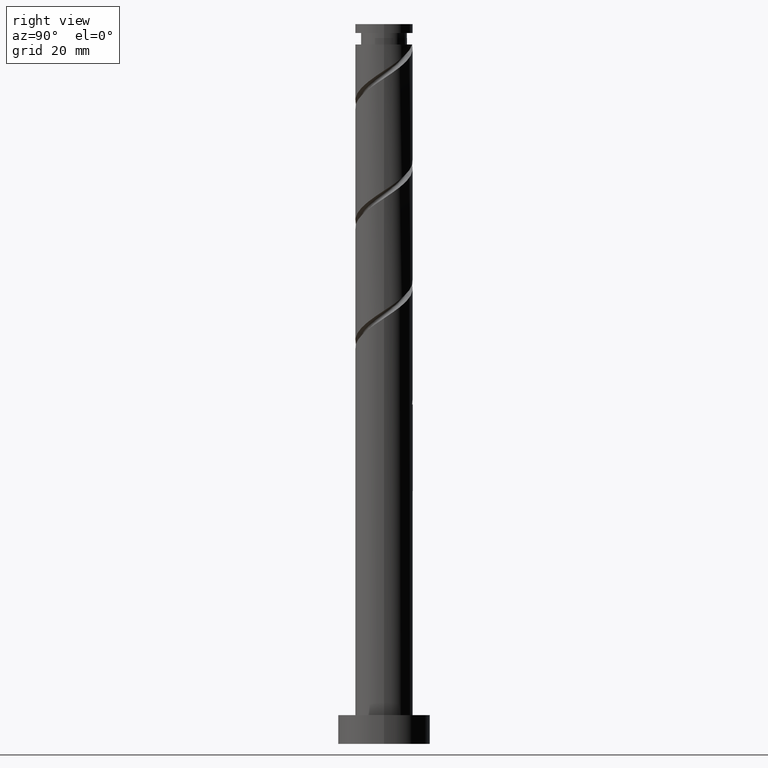
[diagram: clean part render]
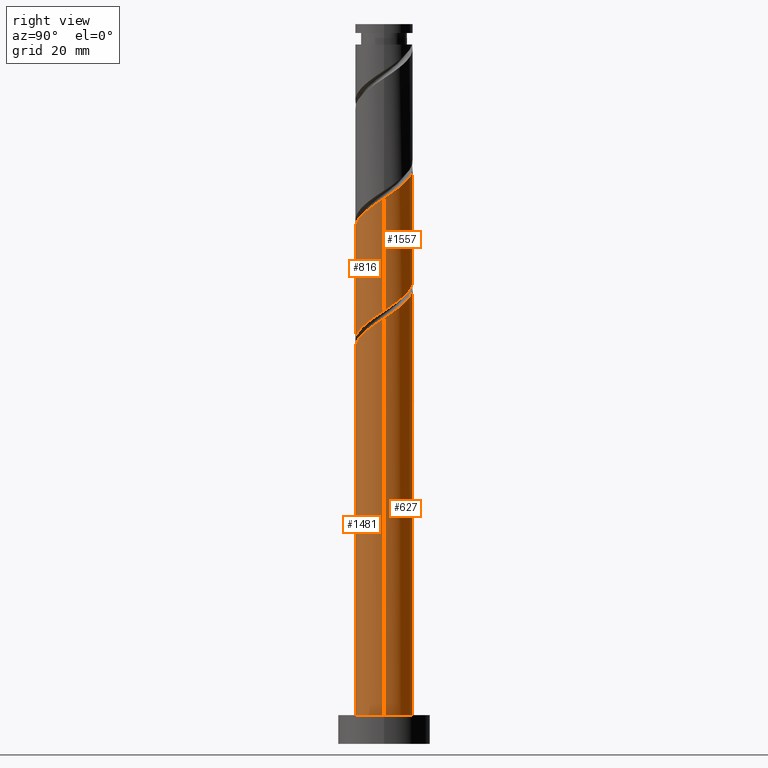
[diagram: same view with one multi-face feature highlighted, each face labeled with its STEP entity id]
A machine part, right view. The highlighted faces form ONE feature: a constant-radius fillet chain: 4 tangent blend faces with common blend radius 5 mm. The faces share edges in the B-rep.
Their STEP definitions:
[1] entity #1481 (Cylinder):
#39 = VECTOR ( 'NONE', #392, 1000.000000000000000 ) ;
#54 = CARTESIAN_POINT ( 'NONE',  ( 4.549022214184804014, -2.075185990424292193, 72.49653711299794168 ) ) ;
#60 = ORIENTED_EDGE ( 'NONE', *, *, #1266, .T. ) ;
#62 = CARTESIAN_POINT ( 'NONE',  ( -3.963008333537548999, -3.149873921561772150, 65.72570377966461308 ) ) ;
#71 = CARTESIAN_POINT ( 'NONE',  ( -4.900000000000005684, -0.9949874371066214085, 64.16320377966461308 ) ) ;
#140 = CARTESIAN_POINT ( 'NONE',  ( -5.000000000000000888, 0.000000000000000000, 125.0000000000000000 ) ) ;
#148 = CARTESIAN_POINT ( 'NONE',  ( 0.000000000000000000, 0.000000000000000000, 5.000000000000000000 ) ) ;
#169 = CARTESIAN_POINT ( 'NONE',  ( 0.9949874371066210754, -4.900000000000005684, 69.37153711299792747 ) ) ;
#190 = ORIENTED_EDGE ( 'NONE', *, *, #1456, .T. ) ;
#378 = VERTEX_POINT ( 'NONE', #921 ) ;
#392 = DIRECTION ( 'NONE',  ( -0.000000000000000000, -0.000000000000000000, -1.000000000000000000 ) ) ;
#433 = CARTESIAN_POINT ( 'NONE',  ( -4.742409471643930452, -1.771071194696850259, 64.68403711299794168 ) ) ;
#501 = VERTEX_POINT ( 'NONE', #1532 ) ;
#524 = CARTESIAN_POINT ( 'NONE',  ( 3.149873921561772150, -3.963008333537549444, 70.93403711299795589 ) ) ;
#561 = AXIS2_PLACEMENT_3D ( 'NONE', #148, #619, #1480 ) ;
#614 = LINE ( 'NONE', #140, #39 ) ;
#619 = DIRECTION ( 'NONE',  ( 0.000000000000000000, 0.000000000000000000, 1.000000000000000000 ) ) ;
#628 = FACE_OUTER_BOUND ( 'NONE', #690, .T. ) ;
#658 = CARTESIAN_POINT ( 'NONE',  ( -2.075185990424292193, -4.549022214184804014, 67.28820377966458466 ) ) ;
#666 = CARTESIAN_POINT ( 'NONE',  ( -5.000000000000005329, -5.397517001954073879E-15, 63.49840133819435550 ) ) ;
#676 = CARTESIAN_POINT ( 'NONE',  ( -0.5678939867451784362, -4.967644957101780001, 68.32987044633128448 ) ) ;
#690 = EDGE_LOOP ( 'NONE', ( #699, #1118, #60, #190 ) ) ;
#694 = VECTOR ( 'NONE', #829, 1000.000000000000000 ) ;
#699 = ORIENTED_EDGE ( 'NONE', *, *, #1190, .F. ) ;
#727 = DIRECTION ( 'NONE',  ( -1.000000000000000000, 0.000000000000000000, 0.000000000000000000 ) ) ;
#767 = CARTESIAN_POINT ( 'NONE',  ( -5.000000000000007994, -0.5025189076296117108, 63.83270591360220436 ) ) ;
#775 = CARTESIAN_POINT ( 'NONE',  ( -3.379344330689691756, -3.685109482041953211, 66.24653711299794168 ) ) ;
#829 = DIRECTION ( 'NONE',  ( -0.000000000000000000, -0.000000000000000000, -1.000000000000000000 ) ) ;
#860 =( BOUNDED_CURVE ( )  B_SPLINE_CURVE ( 2, ( #666, #767, #71, #433, #885, #62, #775, #1258, #658, #1392, #676, #1023, #169, #903, #1521, #524, #1128, #1251, #54, #914, #1376, #895, #1014 ),
 .UNSPECIFIED., .F., .T. ) 
 B_SPLINE_CURVE_WITH_KNOTS ( ( 3, 2, 2, 2, 2, 2, 2, 2, 2, 2, 2, 3 ),
 ( 0.05453220231385528388, 0.06250000000000000000, 0.07499999999999995559, 0.08750000000000002220, 0.09999999999999997780, 0.1125000000000000444, 0.1250000000000000000, 0.1374999999999999556, 0.1500000000000000222, 0.1624999999999999778, 0.1750000000000000444, 0.1795322023138551382 ),
 .UNSPECIFIED. ) 
 CURVE ( )  GEOMETRIC_REPRESENTATION_ITEM ( )  RATIONAL_B_SPLINE_CURVE ( ( 0.9039174447099377341, 0.9019565955404671431, 0.9090909090909153889, 0.8978984914501314529, 0.9090909090909153889, 0.8978984914501314529, 0.9090909090909153889, 0.8978984914501314529, 0.9090909090909153889, 0.8978984914501314529, 0.9090909090909153889, 0.8978984914501314529, 0.9090909090909153889, 0.8978984914501314529, 0.9090909090909153889, 0.8978984914501314529, 0.9090909090909153889, 0.8978984914501314529, 0.9090909090909153889, 0.8978984914501314529, 0.9090909090909153889, 0.9050328050005799208, 0.9039174447099376231 ) ) 
 REPRESENTATION_ITEM ( '' )  );
#866 = CARTESIAN_POINT ( 'NONE',  ( 0.000000000000000000, 0.000000000000000000, 125.0000000000000000 ) ) ;
#885 = CARTESIAN_POINT ( 'NONE',  ( -4.352708902590739726, -2.460472558129311427, 65.20487044633127027 ) ) ;
#895 = CARTESIAN_POINT ( 'NONE',  ( 5.000000000000007105, -0.2848686872321696817, 73.72555691565369784 ) ) ;
#903 = CARTESIAN_POINT ( 'NONE',  ( 1.771071194696850037, -4.742409471643930452, 69.89237044633128448 ) ) ;
#914 = CARTESIAN_POINT ( 'NONE',  ( 4.877699385847474645, -1.354691653006748986, 73.01737044633127027 ) ) ;
#921 = CARTESIAN_POINT ( 'NONE',  ( 5.000000000000000888, 6.123233995736767268E-16, 5.000000000000000000 ) ) ;
#951 = CARTESIAN_POINT ( 'NONE',  ( 5.000000000000000888, 6.123233995736767268E-16, 125.0000000000000000 ) ) ;
#998 = CIRCLE ( 'NONE', #561, 5.000000000000000888 ) ;
#1002 = EDGE_CURVE ( 'NONE', #501, #1098, #860, .T. ) ;
#1014 = CARTESIAN_POINT ( 'NONE',  ( 5.000000000000007105, 4.707834273926610220E-15, 73.91506800486101270 ) ) ;
#1023 = CARTESIAN_POINT ( 'NONE',  ( 0.2189036795163920024, -5.057590528356085358, 68.85070377966459887 ) ) ;
#1089 = VERTEX_POINT ( 'NONE', #1308 ) ;
#1098 = VERTEX_POINT ( 'NONE', #1194 ) ;
#1116 = AXIS2_PLACEMENT_3D ( 'NONE', #866, #1212, #727 ) ;
#1118 = ORIENTED_EDGE ( 'NONE', *, *, #1002, .F. ) ;
#1128 = CARTESIAN_POINT ( 'NONE',  ( 3.685109482041953211, -3.379344330689691756, 71.45487044633127027 ) ) ;
#1190 = EDGE_CURVE ( 'NONE', #1098, #378, #1553, .T. ) ;
#1194 = CARTESIAN_POINT ( 'NONE',  ( 5.000000000000007105, 4.707834273926609431E-15, 73.91506800486101270 ) ) ;
#1212 = DIRECTION ( 'NONE',  ( -0.000000000000000000, -0.000000000000000000, -1.000000000000000000 ) ) ;
#1251 = CARTESIAN_POINT ( 'NONE',  ( 4.220345042522133383, -2.795680327841834956, 71.97570377966461308 ) ) ;
#1258 = CARTESIAN_POINT ( 'NONE',  ( -2.795680327841834512, -4.220345042522133383, 66.76737044633128448 ) ) ;
#1266 = EDGE_CURVE ( 'NONE', #501, #1089, #614, .T. ) ;
#1308 = CARTESIAN_POINT ( 'NONE',  ( -5.000000000000000888, 0.000000000000000000, 5.000000000000000000 ) ) ;
#1376 = CARTESIAN_POINT ( 'NONE',  ( 4.967644957101780001, -0.5678939867451784362, 73.53820377966461308 ) ) ;
#1392 = CARTESIAN_POINT ( 'NONE',  ( -1.354691653006748320, -4.877699385847474645, 67.80903711299791325 ) ) ;
#1456 = EDGE_CURVE ( 'NONE', #1089, #378, #998, .T. ) ;
#1480 = DIRECTION ( 'NONE',  ( 1.000000000000000000, 0.000000000000000000, 0.000000000000000000 ) ) ;
#1481 = ADVANCED_FACE ( 'NONE', ( #628 ), #1490, .T. ) ;
#1490 = CYLINDRICAL_SURFACE ( 'NONE', #1116, 5.000000000000000888 ) ;
#1521 = CARTESIAN_POINT ( 'NONE',  ( 2.460472558129310983, -4.352708902590739726, 70.41320377966459887 ) ) ;
#1532 = CARTESIAN_POINT ( 'NONE',  ( -5.000000000000007105, -5.397517001954073879E-15, 63.49840133819435550 ) ) ;
#1553 = LINE ( 'NONE', #951, #694 ) ;
[2] entity #627 (Cylinder):
#4 = CARTESIAN_POINT ( 'NONE',  ( -4.549022214184804014, 2.075185990424291305, 62.07987044633127738 ) ) ;
#20 = CARTESIAN_POINT ( 'NONE',  ( 0.9949874371066222967, 4.900000000000000355, 58.95487044633127027 ) ) ;
#23 = ORIENTED_EDGE ( 'NONE', *, *, #1266, .F. ) ;
#39 = VECTOR ( 'NONE', #392, 1000.000000000000000 ) ;
#42 = CARTESIAN_POINT ( 'NONE',  ( 4.742409471643930452, 1.771071194696849815, 75.10070377966461308 ) ) ;
#51 = DIRECTION ( 'NONE',  ( -1.000000000000000000, 0.000000000000000000, 0.000000000000000000 ) ) ;
#63 = CARTESIAN_POINT ( 'NONE',  ( -0.5678939867451763268, 4.967644957101771119, 59.99653711299794878 ) ) ;
#85 = CARTESIAN_POINT ( 'NONE',  ( -2.795680327841830959, 4.220345042522129830, 61.55903711299793457 ) ) ;
#94 = CARTESIAN_POINT ( 'NONE',  ( -1.354691653006745433, 4.877699385847470204, 60.51737044633127027 ) ) ;
#102 = EDGE_CURVE ( 'NONE', #808, #501, #1044, .T. ) ;
#109 = CARTESIAN_POINT ( 'NONE',  ( -5.000000000000000888, 0.000000000000000000, 125.0000000000000000 ) ) ;
#130 = VERTEX_POINT ( 'NONE', #20 ) ;
#140 = CARTESIAN_POINT ( 'NONE',  ( -5.000000000000000888, 0.000000000000000000, 125.0000000000000000 ) ) ;
#175 = CARTESIAN_POINT ( 'NONE',  ( -4.549022214184804014, 2.075185990424291305, 82.91320377966458466 ) ) ;
#195 = CARTESIAN_POINT ( 'NONE',  ( -4.742409471643924235, 1.771071194696849149, 63.64237044633128448 ) ) ;
#220 = VERTEX_POINT ( 'NONE', #759 ) ;
#225 = CARTESIAN_POINT ( 'NONE',  ( 0.5678939867451792134, 4.967644957101780001, 78.74653711299794168 ) ) ;
#235 = ORIENTED_EDGE ( 'NONE', *, *, #1105, .F. ) ;
#239 = CARTESIAN_POINT ( 'NONE',  ( -4.967644957101780001, 0.5678939867451781032, 63.12153711299794168 ) ) ;
#243 = CIRCLE ( 'NONE', #1045, 5.000000000000000888 ) ;
#247 = CARTESIAN_POINT ( 'NONE',  ( 3.963008333537549444, 3.149873921561772150, 76.14237044633127027 ) ) ;
#252 = CARTESIAN_POINT ( 'NONE',  ( -5.000000000000005329, -5.397517001954073879E-15, 63.49840133819435550 ) ) ;
#272 = CARTESIAN_POINT ( 'NONE',  ( 5.000000000000007105, 0.5025189076296017188, 74.24937258026885445 ) ) ;
#301 = CARTESIAN_POINT ( 'NONE',  ( 0.9949874371066222967, 4.900000000000000355, 58.95487044633127027 ) ) ;
#320 = CARTESIAN_POINT ( 'NONE',  ( -3.379344330689686871, 3.685109482041948770, 62.07987044633126317 ) ) ;
#328 = CARTESIAN_POINT ( 'NONE',  ( -0.2189036795163912807, 5.057590528356085358, 79.26737044633129869 ) ) ;
#341 = CARTESIAN_POINT ( 'NONE',  ( 2.075185990424292637, 4.549022214184804014, 77.70487044633128448 ) ) ;
#358 = EDGE_CURVE ( 'NONE', #1429, #130, #823, .T. ) ;
#359 = CARTESIAN_POINT ( 'NONE',  ( 2.795680327841834956, 4.220345042522132495, 77.18403711299792747 ) ) ;
#378 = VERTEX_POINT ( 'NONE', #921 ) ;
#392 = DIRECTION ( 'NONE',  ( -0.000000000000000000, -0.000000000000000000, -1.000000000000000000 ) ) ;
#423 = CYLINDRICAL_SURFACE ( 'NONE', #1542, 5.000000000000000888 ) ;
#426 = CARTESIAN_POINT ( 'NONE',  ( -4.967644957101780001, 0.5678939867451781032, 83.95487044633128448 ) ) ;
#427 = CARTESIAN_POINT ( 'NONE',  ( -4.999999999999999112, 0.5025189076296100454, 64.49370164572702890 ) ) ;
#450 = FACE_OUTER_BOUND ( 'NONE', #1518, .T. ) ;
#473 = CIRCLE ( 'NONE', #1225, 5.000000000000000888 ) ;
#489 = CARTESIAN_POINT ( 'NONE',  ( -1.771071194696850259, 4.742409471643930452, 59.47570377966462019 ) ) ;
#501 = VERTEX_POINT ( 'NONE', #1532 ) ;
#517 = CARTESIAN_POINT ( 'NONE',  ( -2.460472558129311427, 4.352708902590739726, 80.82987044633128448 ) ) ;
#538 = CARTESIAN_POINT ( 'NONE',  ( -3.149873921561772150, 3.963008333537548999, 81.35070377966461308 ) ) ;
#564 = CARTESIAN_POINT ( 'NONE',  ( 5.000000000000007105, 4.707834273926610220E-15, 73.91506800486101270 ) ) ;
#592 = CARTESIAN_POINT ( 'NONE',  ( -4.220345042522134271, 2.795680327841834512, 61.55903711299794168 ) ) ;
#614 = LINE ( 'NONE', #140, #39 ) ;
#615 = CARTESIAN_POINT ( 'NONE',  ( 4.352708902590739726, 2.460472558129310539, 75.62153711299791325 ) ) ;
#627 = ADVANCED_FACE ( 'NONE', ( #450 ), #423, .T. ) ;
#638 = DIRECTION ( 'NONE',  ( -1.540743955509787281E-30, -1.040834085586083783E-14, -1.000000000000000000 ) ) ;
#647 = DIRECTION ( 'NONE',  ( -0.000000000000000000, -0.000000000000000000, -1.000000000000000000 ) ) ;
#657 = CARTESIAN_POINT ( 'NONE',  ( 1.354691653006749208, 4.877699385847474645, 78.22570377966458466 ) ) ;
#659 = CARTESIAN_POINT ( 'NONE',  ( -4.352708902590734397, 2.460472558129308762, 63.12153711299791325 ) ) ;
#694 = VECTOR ( 'NONE', #829, 1000.000000000000000 ) ;
#714 = ORIENTED_EDGE ( 'NONE', *, *, #1190, .T. ) ;
#718 = CARTESIAN_POINT ( 'NONE',  ( -2.460472558129311427, 4.352708902590739726, 59.99653711299794878 ) ) ;
#732 = ORIENTED_EDGE ( 'NONE', *, *, #358, .F. ) ;
#759 = CARTESIAN_POINT ( 'NONE',  ( -5.000000000000007105, -5.397517001954073879E-15, 84.33173467152766989 ) ) ;
#771 = CARTESIAN_POINT ( 'NONE',  ( 4.900000000000005684, 0.9949874371066207424, 74.57987044633128448 ) ) ;
#782 = CARTESIAN_POINT ( 'NONE',  ( -3.685109482041953655, 3.379344330689691756, 81.87153711299795589 ) ) ;
#808 = VERTEX_POINT ( 'NONE', #1468 ) ;
#814 = ORIENTED_EDGE ( 'NONE', *, *, #102, .F. ) ;
#823 =( BOUNDED_CURVE ( )  B_SPLINE_CURVE ( 2, ( #1402, #427, #1278, #195, #659, #1527, #320, #85, #896, #94, #63, #1554, #301 ),
 .UNSPECIFIED., .F., .T. ) 
 B_SPLINE_CURVE_WITH_KNOTS ( ( 3, 2, 2, 2, 2, 2, 3 ),
 ( 0.9295322023138552492, 0.9375000000000000000, 0.9499999999999999556, 0.9625000000000000222, 0.9749999999999999778, 0.9875000000000000444, 1.000000000000000000 ),
 .UNSPECIFIED. ) 
 CURVE ( )  GEOMETRIC_REPRESENTATION_ITEM ( )  RATIONAL_B_SPLINE_CURVE ( ( 0.9039174447099327381, 0.9019565955404621471, 0.9090909090909105039, 0.8978984914501265679, 0.9090909090909105039, 0.8978984914501265679, 0.9090909090909105039, 0.8978984914501265679, 0.9090909090909105039, 0.8978984914501265679, 0.9090909090909105039, 0.8978984914501265679, 0.9090909090909105039 ) ) 
 REPRESENTATION_ITEM ( '' )  );
#829 = DIRECTION ( 'NONE',  ( -0.000000000000000000, -0.000000000000000000, -1.000000000000000000 ) ) ;
#896 = CARTESIAN_POINT ( 'NONE',  ( -2.075185990424288196, 4.549022214184799573, 61.03820377966461308 ) ) ;
#905 = EDGE_CURVE ( 'NONE', #1098, #220, #1357, .T. ) ;
#921 = CARTESIAN_POINT ( 'NONE',  ( 5.000000000000000888, 6.123233995736767268E-16, 5.000000000000000000 ) ) ;
#951 = CARTESIAN_POINT ( 'NONE',  ( 5.000000000000000888, 6.123233995736767268E-16, 125.0000000000000000 ) ) ;
#960 = EDGE_CURVE ( 'NONE', #378, #1089, #473, .T. ) ;
#969 = CARTESIAN_POINT ( 'NONE',  ( -3.149873921561772150, 3.963008333537548999, 60.51737044633128448 ) ) ;
#976 = CARTESIAN_POINT ( 'NONE',  ( -0.9949874371066202983, 4.900000000000006573, 58.95487044633127027 ) ) ;
#1007 = CARTESIAN_POINT ( 'NONE',  ( 0.000000000000000000, 0.000000000000000000, 5.000000000000000000 ) ) ;
#1030 = CARTESIAN_POINT ( 'NONE',  ( -4.877699385847474645, 1.354691653006748320, 83.43403711299792747 ) ) ;
#1044 =( BOUNDED_CURVE ( )  B_SPLINE_CURVE ( 2, ( #976, #489, #718, #969, #1436, #592, #4, #1062, #239, #1328, #252 ),
 .UNSPECIFIED., .F., .T. ) 
 B_SPLINE_CURVE_WITH_KNOTS ( ( 3, 2, 2, 2, 2, 3 ),
 ( 0.000000000000000000, 0.01249999999999995559, 0.02500000000000002220, 0.03749999999999997780, 0.05000000000000004441, 0.05453220231385528388 ),
 .UNSPECIFIED. ) 
 CURVE ( )  GEOMETRIC_REPRESENTATION_ITEM ( )  RATIONAL_B_SPLINE_CURVE ( ( 0.9090909090909153889, 0.8978984914501314529, 0.9090909090909153889, 0.8978984914501314529, 0.9090909090909153889, 0.8978984914501314529, 0.9090909090909153889, 0.8978984914501314529, 0.9090909090909153889, 0.9050328050005798097, 0.9039174447099377341 ) ) 
 REPRESENTATION_ITEM ( '' )  );
#1045 = AXIS2_PLACEMENT_3D ( 'NONE', #1151, #638, #1391 ) ;
#1062 = CARTESIAN_POINT ( 'NONE',  ( -4.877699385847474645, 1.354691653006748320, 62.60070377966461308 ) ) ;
#1089 = VERTEX_POINT ( 'NONE', #1308 ) ;
#1098 = VERTEX_POINT ( 'NONE', #1194 ) ;
#1105 = EDGE_CURVE ( 'NONE', #220, #1429, #1186, .T. ) ;
#1134 = CARTESIAN_POINT ( 'NONE',  ( -4.220345042522134271, 2.795680327841834512, 82.39237044633127027 ) ) ;
#1151 = CARTESIAN_POINT ( 'NONE',  ( 0.000000000000000000, 0.000000000000000000, 58.95487044633132712 ) ) ;
#1186 = LINE ( 'NONE', #109, #1345 ) ;
#1190 = EDGE_CURVE ( 'NONE', #1098, #378, #1553, .T. ) ;
#1194 = CARTESIAN_POINT ( 'NONE',  ( 5.000000000000007105, 4.707834273926609431E-15, 73.91506800486101270 ) ) ;
#1203 = ORIENTED_EDGE ( 'NONE', *, *, #1567, .T. ) ;
#1225 = AXIS2_PLACEMENT_3D ( 'NONE', #1007, #1384, #1369 ) ;
#1263 = CARTESIAN_POINT ( 'NONE',  ( -5.000000000000007105, -5.397517001954073879E-15, 84.33173467152766989 ) ) ;
#1266 = EDGE_CURVE ( 'NONE', #501, #1089, #614, .T. ) ;
#1278 = CARTESIAN_POINT ( 'NONE',  ( -4.900000000000000355, 0.9949874371066211864, 64.16320377966461308 ) ) ;
#1289 = CARTESIAN_POINT ( 'NONE',  ( 0.000000000000000000, 0.000000000000000000, 125.0000000000000000 ) ) ;
#1291 = DIRECTION ( 'NONE',  ( -0.000000000000000000, -0.000000000000000000, -1.000000000000000000 ) ) ;
#1295 = CARTESIAN_POINT ( 'NONE',  ( -0.9949874371066202983, 4.900000000000005684, 79.78820377966459887 ) ) ;
#1308 = CARTESIAN_POINT ( 'NONE',  ( -5.000000000000000888, 0.000000000000000000, 5.000000000000000000 ) ) ;
#1328 = CARTESIAN_POINT ( 'NONE',  ( -5.000000000000008882, 0.2848686872321599672, 63.30889024898707618 ) ) ;
#1332 = ORIENTED_EDGE ( 'NONE', *, *, #905, .F. ) ;
#1345 = VECTOR ( 'NONE', #1291, 1000.000000000000000 ) ;
#1357 =( BOUNDED_CURVE ( )  B_SPLINE_CURVE ( 2, ( #564, #272, #771, #42, #615, #247, #1449, #359, #341, #657, #225, #328, #1295, #1512, #517, #538, #782, #1134, #175, #1030, #426, #1401, #1263 ),
 .UNSPECIFIED., .F., .T. ) 
 B_SPLINE_CURVE_WITH_KNOTS ( ( 3, 2, 2, 2, 2, 2, 2, 2, 2, 2, 2, 3 ),
 ( 0.1795322023138551382, 0.1875000000000000000, 0.1999999999999999556, 0.2125000000000000222, 0.2249999999999999778, 0.2375000000000000444, 0.2500000000000000000, 0.2624999999999999556, 0.2750000000000000222, 0.2874999999999999778, 0.3000000000000000444, 0.3045322023138552492 ),
 .UNSPECIFIED. ) 
 CURVE ( )  GEOMETRIC_REPRESENTATION_ITEM ( )  RATIONAL_B_SPLINE_CURVE ( ( 0.9039174447099376231, 0.9019565955404669211, 0.9090909090909153889, 0.8978984914501314529, 0.9090909090909153889, 0.8978984914501314529, 0.9090909090909153889, 0.8978984914501314529, 0.9090909090909153889, 0.8978984914501314529, 0.9090909090909153889, 0.8978984914501314529, 0.9090909090909153889, 0.8978984914501314529, 0.9090909090909153889, 0.8978984914501314529, 0.9090909090909153889, 0.8978984914501314529, 0.9090909090909153889, 0.8978984914501314529, 0.9090909090909153889, 0.9050328050005798097, 0.9039174447099376231 ) ) 
 REPRESENTATION_ITEM ( '' )  );
#1369 = DIRECTION ( 'NONE',  ( 1.000000000000000000, 0.000000000000000000, 0.000000000000000000 ) ) ;
#1384 = DIRECTION ( 'NONE',  ( 0.000000000000000000, 0.000000000000000000, 1.000000000000000000 ) ) ;
#1391 = DIRECTION ( 'NONE',  ( 0.000000000000000000, 1.000000000000000000, -9.714451465470118151E-15 ) ) ;
#1401 = CARTESIAN_POINT ( 'NONE',  ( -5.000000000000007994, 0.2848686872321621322, 84.14222358232039767 ) ) ;
#1402 = CARTESIAN_POINT ( 'NONE',  ( -5.000000000000000000, 6.686923841309805221E-15, 64.82800622113487066 ) ) ;
#1429 = VERTEX_POINT ( 'NONE', #1460 ) ;
#1436 = CARTESIAN_POINT ( 'NONE',  ( -3.685109482041953655, 3.379344330689691756, 61.03820377966459887 ) ) ;
#1449 = CARTESIAN_POINT ( 'NONE',  ( 3.379344330689692200, 3.685109482041953211, 76.66320377966458466 ) ) ;
#1458 = ORIENTED_EDGE ( 'NONE', *, *, #960, .T. ) ;
#1460 = CARTESIAN_POINT ( 'NONE',  ( -5.000000000000000000, 6.686923841309805221E-15, 64.82800622113487066 ) ) ;
#1468 = CARTESIAN_POINT ( 'NONE',  ( -0.9949874371066202983, 4.900000000000006573, 58.95487044633127027 ) ) ;
#1512 = CARTESIAN_POINT ( 'NONE',  ( -1.771071194696850259, 4.742409471643930452, 80.30903711299797010 ) ) ;
#1518 = EDGE_LOOP ( 'NONE', ( #1332, #714, #1458, #23, #814, #1203, #732, #235 ) ) ;
#1527 = CARTESIAN_POINT ( 'NONE',  ( -3.963008333537541894, 3.149873921561768597, 62.60070377966462019 ) ) ;
#1532 = CARTESIAN_POINT ( 'NONE',  ( -5.000000000000007105, -5.397517001954073879E-15, 63.49840133819435550 ) ) ;
#1542 = AXIS2_PLACEMENT_3D ( 'NONE', #1289, #647, #51 ) ;
#1553 = LINE ( 'NONE', #951, #694 ) ;
#1554 = CARTESIAN_POINT ( 'NONE',  ( 0.2189036795163931681, 5.057590528356077364, 59.47570377966459887 ) ) ;
#1567 = EDGE_CURVE ( 'NONE', #808, #130, #243, .T. ) ;
[3] entity #816 (Cylinder):
#11 = CARTESIAN_POINT ( 'NONE',  ( 5.000000000000000888, -0.5025189076296037172, 74.91036831239368610 ) ) ;
#25 = LINE ( 'NONE', #1108, #854 ) ;
#37 = CARTESIAN_POINT ( 'NONE',  ( 4.742409471643924235, -1.771071194696849815, 74.05903711299795589 ) ) ;
#72 = CARTESIAN_POINT ( 'NONE',  ( -3.963008333537548999, -3.149873921561772150, 86.55903711299795589 ) ) ;
#105 = CARTESIAN_POINT ( 'NONE',  ( -4.877699385847470204, -1.354691653006745433, 65.72570377966461308 ) ) ;
#109 = CARTESIAN_POINT ( 'NONE',  ( -5.000000000000000888, 0.000000000000000000, 125.0000000000000000 ) ) ;
#184 = CARTESIAN_POINT ( 'NONE',  ( -4.742409471643930452, -1.771071194696850259, 85.51737044633125606 ) ) ;
#219 = CARTESIAN_POINT ( 'NONE',  ( -0.9949874371066216305, -4.900000000000000355, 69.37153711299794168 ) ) ;
#220 = VERTEX_POINT ( 'NONE', #759 ) ;
#227 = CARTESIAN_POINT ( 'NONE',  ( 2.075185990424287308, -4.549022214184799573, 71.45487044633125606 ) ) ;
#285 = CARTESIAN_POINT ( 'NONE',  ( 4.220345042522133383, -2.795680327841834956, 92.80903711299797010 ) ) ;
#309 = CARTESIAN_POINT ( 'NONE',  ( 5.000000000000000888, 6.686923841309805221E-15, 75.24467288780154206 ) ) ;
#353 = CARTESIAN_POINT ( 'NONE',  ( -1.771071194696849149, -4.742409471643924235, 68.85070377966459887 ) ) ;
#381 = CARTESIAN_POINT ( 'NONE',  ( 3.379344330689686426, -3.685109482041949658, 72.49653711299792747 ) ) ;
#399 = CARTESIAN_POINT ( 'NONE',  ( 3.963008333537541894, -3.149873921561769041, 73.01737044633127027 ) ) ;
#401 = EDGE_CURVE ( 'NONE', #220, #1132, #729, .T. ) ;
#408 = CARTESIAN_POINT ( 'NONE',  ( 1.771071194696850037, -4.742409471643930452, 90.72570377966459887 ) ) ;
#434 = CARTESIAN_POINT ( 'NONE',  ( -3.379344330689691756, -3.685109482041953211, 87.07987044633128448 ) ) ;
#442 = CARTESIAN_POINT ( 'NONE',  ( 5.000000000000007994, -0.2848686872321627428, 94.55889024898705486 ) ) ;
#446 = AXIS2_PLACEMENT_3D ( 'NONE', #751, #1492, #1437 ) ;
#464 = CARTESIAN_POINT ( 'NONE',  ( -3.149873921561768597, -3.963008333537541894, 67.80903711299794168 ) ) ;
#523 = CARTESIAN_POINT ( 'NONE',  ( 4.877699385847474645, -1.354691653006748986, 93.85070377966459887 ) ) ;
#536 = ORIENTED_EDGE ( 'NONE', *, *, #748, .F. ) ;
#567 = CARTESIAN_POINT ( 'NONE',  ( -4.900000000000005684, -0.9949874371066214085, 84.99653711299792747 ) ) ;
#581 = CARTESIAN_POINT ( 'NONE',  ( 5.000000000000007105, 4.707834273926609431E-15, 94.74840133819434129 ) ) ;
#599 = CARTESIAN_POINT ( 'NONE',  ( 5.000000000000000888, 6.686923841309805221E-15, 75.24467288780154206 ) ) ;
#677 = CARTESIAN_POINT ( 'NONE',  ( 0.2189036795163920024, -5.057590528356085358, 89.68403711299795589 ) ) ;
#681 = ORIENTED_EDGE ( 'NONE', *, *, #1105, .T. ) ;
#698 = CARTESIAN_POINT ( 'NONE',  ( -2.460472558129308762, -4.352708902590734397, 68.32987044633125606 ) ) ;
#729 =( BOUNDED_CURVE ( )  B_SPLINE_CURVE ( 2, ( #1264, #1156, #567, #184, #1144, #72, #434, #1056, #904, #1393, #787, #677, #1220, #408, #876, #842, #1368, #285, #1126, #523, #739, #442, #894 ),
 .UNSPECIFIED., .F., .T. ) 
 B_SPLINE_CURVE_WITH_KNOTS ( ( 3, 2, 2, 2, 2, 2, 2, 2, 2, 2, 2, 3 ),
 ( 0.3045322023138552492, 0.3125000000000000000, 0.3249999999999999556, 0.3375000000000000222, 0.3499999999999999778, 0.3625000000000000444, 0.3750000000000000000, 0.3874999999999999556, 0.4000000000000000222, 0.4124999999999999778, 0.4250000000000000444, 0.4295322023138552492 ),
 .UNSPECIFIED. ) 
 CURVE ( )  GEOMETRIC_REPRESENTATION_ITEM ( )  RATIONAL_B_SPLINE_CURVE ( ( 0.9039174447099376231, 0.9019565955404669211, 0.9090909090909153889, 0.8978984914501314529, 0.9090909090909153889, 0.8978984914501314529, 0.9090909090909153889, 0.8978984914501314529, 0.9090909090909153889, 0.8978984914501314529, 0.9090909090909153889, 0.8978984914501314529, 0.9090909090909153889, 0.8978984914501314529, 0.9090909090909153889, 0.8978984914501314529, 0.9090909090909153889, 0.8978984914501314529, 0.9090909090909153889, 0.8978984914501314529, 0.9090909090909153889, 0.9050328050005798097, 0.9039174447099376231 ) ) 
 REPRESENTATION_ITEM ( '' )  );
#739 = CARTESIAN_POINT ( 'NONE',  ( 4.967644957101780001, -0.5678939867451784362, 94.37153711299792747 ) ) ;
#748 = EDGE_CURVE ( 'NONE', #1020, #1429, #1491, .T. ) ;
#751 = CARTESIAN_POINT ( 'NONE',  ( 0.000000000000000000, 0.000000000000000000, 125.0000000000000000 ) ) ;
#759 = CARTESIAN_POINT ( 'NONE',  ( -5.000000000000007105, -5.397517001954073879E-15, 84.33173467152766989 ) ) ;
#787 = CARTESIAN_POINT ( 'NONE',  ( -0.5678939867451784362, -4.967644957101780001, 89.16320377966462729 ) ) ;
#807 = CARTESIAN_POINT ( 'NONE',  ( 1.354691653006744989, -4.877699385847468427, 70.93403711299792747 ) ) ;
#816 = ADVANCED_FACE ( 'NONE', ( #1462 ), #1199, .T. ) ;
#842 = CARTESIAN_POINT ( 'NONE',  ( 3.149873921561772150, -3.963008333537549444, 91.76737044633131291 ) ) ;
#854 = VECTOR ( 'NONE', #983, 1000.000000000000000 ) ;
#876 = CARTESIAN_POINT ( 'NONE',  ( 2.460472558129310983, -4.352708902590739726, 91.24653711299791325 ) ) ;
#894 = CARTESIAN_POINT ( 'NONE',  ( 5.000000000000007105, 4.707834273926610220E-15, 94.74840133819434129 ) ) ;
#904 = CARTESIAN_POINT ( 'NONE',  ( -2.075185990424292193, -4.549022214184804014, 88.12153711299794168 ) ) ;
#934 = CARTESIAN_POINT ( 'NONE',  ( -3.685109482041949658, -3.379344330689686426, 67.28820377966459887 ) ) ;
#947 = CARTESIAN_POINT ( 'NONE',  ( -5.000000000000000000, 6.686923841309805221E-15, 64.82800622113487066 ) ) ;
#955 = CARTESIAN_POINT ( 'NONE',  ( 2.795680327841830515, -4.220345042522129830, 71.97570377966462729 ) ) ;
#983 = DIRECTION ( 'NONE',  ( -0.000000000000000000, -0.000000000000000000, -1.000000000000000000 ) ) ;
#985 = CARTESIAN_POINT ( 'NONE',  ( 4.900000000000000355, -0.9949874371066218526, 74.57987044633127027 ) ) ;
#1020 = VERTEX_POINT ( 'NONE', #309 ) ;
#1056 = CARTESIAN_POINT ( 'NONE',  ( -2.795680327841834512, -4.220345042522133383, 87.60070377966462729 ) ) ;
#1067 = CARTESIAN_POINT ( 'NONE',  ( -4.967644957101771119, -0.5678939867451757717, 65.20487044633125606 ) ) ;
#1081 = ORIENTED_EDGE ( 'NONE', *, *, #1353, .F. ) ;
#1105 = EDGE_CURVE ( 'NONE', #220, #1429, #1186, .T. ) ;
#1108 = CARTESIAN_POINT ( 'NONE',  ( 5.000000000000000888, 6.123233995736767268E-16, 125.0000000000000000 ) ) ;
#1126 = CARTESIAN_POINT ( 'NONE',  ( 4.549022214184804014, -2.075185990424292193, 93.32987044633128448 ) ) ;
#1132 = VERTEX_POINT ( 'NONE', #581 ) ;
#1144 = CARTESIAN_POINT ( 'NONE',  ( -4.352708902590739726, -2.460472558129311427, 86.03820377966458466 ) ) ;
#1156 = CARTESIAN_POINT ( 'NONE',  ( -5.000000000000008882, -0.5025189076296094903, 84.66603924693551164 ) ) ;
#1183 = CARTESIAN_POINT ( 'NONE',  ( -0.2189036795163937787, -5.057590528356077364, 69.89237044633127027 ) ) ;
#1186 = LINE ( 'NONE', #109, #1345 ) ;
#1199 = CYLINDRICAL_SURFACE ( 'NONE', #446, 5.000000000000000888 ) ;
#1220 = CARTESIAN_POINT ( 'NONE',  ( 0.9949874371066210754, -4.900000000000005684, 90.20487044633125606 ) ) ;
#1264 = CARTESIAN_POINT ( 'NONE',  ( -5.000000000000007105, -5.397517001954073879E-15, 84.33173467152766989 ) ) ;
#1291 = DIRECTION ( 'NONE',  ( -0.000000000000000000, -0.000000000000000000, -1.000000000000000000 ) ) ;
#1294 = CARTESIAN_POINT ( 'NONE',  ( 0.5678939867451756607, -4.967644957101771119, 70.41320377966458466 ) ) ;
#1303 = CARTESIAN_POINT ( 'NONE',  ( -4.549022214184799573, -2.075185990424287308, 66.24653711299792747 ) ) ;
#1345 = VECTOR ( 'NONE', #1291, 1000.000000000000000 ) ;
#1353 = EDGE_CURVE ( 'NONE', #1132, #1020, #25, .T. ) ;
#1368 = CARTESIAN_POINT ( 'NONE',  ( 3.685109482041953211, -3.379344330689691756, 92.28820377966461308 ) ) ;
#1393 = CARTESIAN_POINT ( 'NONE',  ( -1.354691653006748320, -4.877699385847474645, 88.64237044633127027 ) ) ;
#1428 = CARTESIAN_POINT ( 'NONE',  ( -4.220345042522129830, -2.795680327841830515, 66.76737044633127027 ) ) ;
#1429 = VERTEX_POINT ( 'NONE', #1460 ) ;
#1437 = DIRECTION ( 'NONE',  ( -1.000000000000000000, 0.000000000000000000, 0.000000000000000000 ) ) ;
#1452 = ORIENTED_EDGE ( 'NONE', *, *, #401, .F. ) ;
#1460 = CARTESIAN_POINT ( 'NONE',  ( -5.000000000000000000, 6.686923841309805221E-15, 64.82800622113487066 ) ) ;
#1462 = FACE_OUTER_BOUND ( 'NONE', #1565, .T. ) ;
#1473 = CARTESIAN_POINT ( 'NONE',  ( 4.352708902590734397, -2.460472558129309206, 73.53820377966459887 ) ) ;
#1491 =( BOUNDED_CURVE ( )  B_SPLINE_CURVE ( 2, ( #599, #11, #985, #37, #1473, #399, #381, #955, #227, #807, #1294, #1183, #219, #353, #698, #464, #934, #1428, #1303, #105, #1067, #1564, #947 ),
 .UNSPECIFIED., .F., .T. ) 
 B_SPLINE_CURVE_WITH_KNOTS ( ( 3, 2, 2, 2, 2, 2, 2, 2, 2, 2, 2, 3 ),
 ( 0.8045322023138551382, 0.8125000000000000000, 0.8249999999999999556, 0.8375000000000000222, 0.8499999999999999778, 0.8625000000000000444, 0.8750000000000000000, 0.8874999999999999556, 0.9000000000000000222, 0.9124999999999999778, 0.9250000000000000444, 0.9295322023138552492 ),
 .UNSPECIFIED. ) 
 CURVE ( )  GEOMETRIC_REPRESENTATION_ITEM ( )  RATIONAL_B_SPLINE_CURVE ( ( 0.9039174447099327381, 0.9019565955404620361, 0.9090909090909105039, 0.8978984914501265679, 0.9090909090909105039, 0.8978984914501265679, 0.9090909090909105039, 0.8978984914501265679, 0.9090909090909105039, 0.8978984914501265679, 0.9090909090909105039, 0.8978984914501265679, 0.9090909090909105039, 0.8978984914501265679, 0.9090909090909105039, 0.8978984914501265679, 0.9090909090909105039, 0.8978984914501265679, 0.9090909090909105039, 0.8978984914501265679, 0.9090909090909105039, 0.9050328050005749247, 0.9039174447099327381 ) ) 
 REPRESENTATION_ITEM ( '' )  );
#1492 = DIRECTION ( 'NONE',  ( -0.000000000000000000, -0.000000000000000000, -1.000000000000000000 ) ) ;
#1564 = CARTESIAN_POINT ( 'NONE',  ( -5.000000000000000000, -0.2848686872321604668, 65.01751731034215709 ) ) ;
#1565 = EDGE_LOOP ( 'NONE', ( #1081, #1452, #681, #536 ) ) ;
[4] entity #1557 (Cylinder):
#15 = ORIENTED_EDGE ( 'NONE', *, *, #578, .F. ) ;
#25 = LINE ( 'NONE', #1108, #854 ) ;
#38 = VECTOR ( 'NONE', #793, 1000.000000000000000 ) ;
#47 = CARTESIAN_POINT ( 'NONE',  ( -1.771071194696850259, 4.742409471643930452, 101.1423704463312845 ) ) ;
#48 = CARTESIAN_POINT ( 'NONE',  ( -0.5678939867451763268, 4.967644957101771119, 80.82987044633127027 ) ) ;
#55 = CARTESIAN_POINT ( 'NONE',  ( 0.9949874371066222967, 4.900000000000000355, 79.78820377966462729 ) ) ;
#78 =( BOUNDED_CURVE ( )  B_SPLINE_CURVE ( 2, ( #194, #294, #1155, #548, #1035, #1536, #445, #319, #796, #1286, #205, #1120, #409, #47, #1503, #557, #938, #920, #230, #815, #1055, #338, #810 ),
 .UNSPECIFIED., .F., .T. ) 
 B_SPLINE_CURVE_WITH_KNOTS ( ( 3, 2, 2, 2, 2, 2, 2, 2, 2, 2, 2, 3 ),
 ( 0.4295322023138552492, 0.4375000000000000000, 0.4499999999999999556, 0.4625000000000000222, 0.4749999999999999778, 0.4875000000000000444, 0.5000000000000000000, 0.5124999999999999556, 0.5250000000000000222, 0.5374999999999999778, 0.5500000000000000444, 0.5545322023138553602 ),
 .UNSPECIFIED. ) 
 CURVE ( )  GEOMETRIC_REPRESENTATION_ITEM ( )  RATIONAL_B_SPLINE_CURVE ( ( 0.9039174447099376231, 0.9019565955404669211, 0.9090909090909153889, 0.8978984914501314529, 0.9090909090909153889, 0.8978984914501314529, 0.9090909090909153889, 0.8978984914501314529, 0.9090909090909153889, 0.8978984914501314529, 0.9090909090909153889, 0.8978984914501314529, 0.9090909090909153889, 0.8978984914501314529, 0.9090909090909153889, 0.8978984914501314529, 0.9090909090909153889, 0.8978984914501314529, 0.9090909090909153889, 0.8978984914501314529, 0.9090909090909153889, 0.9050328050005795877, 0.9039174447099376231 ) ) 
 REPRESENTATION_ITEM ( '' )  );
#137 = EDGE_LOOP ( 'NONE', ( #256, #611, #1406, #15 ) ) ;
#157 = CARTESIAN_POINT ( 'NONE',  ( -3.963008333537541894, 3.149873921561768597, 83.43403711299791325 ) ) ;
#182 = CYLINDRICAL_SURFACE ( 'NONE', #721, 5.000000000000000888 ) ;
#194 = CARTESIAN_POINT ( 'NONE',  ( 5.000000000000007105, 4.707834273926610220E-15, 94.74840133819434129 ) ) ;
#202 = CARTESIAN_POINT ( 'NONE',  ( -5.000000000000000888, 0.000000000000000000, 125.0000000000000000 ) ) ;
#205 = CARTESIAN_POINT ( 'NONE',  ( 0.5678939867451792134, 4.967644957101780001, 99.57987044633125606 ) ) ;
#206 = CARTESIAN_POINT ( 'NONE',  ( 4.877699385847468427, 1.354691653006744989, 76.14237044633128448 ) ) ;
#230 = CARTESIAN_POINT ( 'NONE',  ( -4.549022214184804014, 2.075185990424291305, 103.7465371129979417 ) ) ;
#256 = ORIENTED_EDGE ( 'NONE', *, *, #1029, .F. ) ;
#267 = CARTESIAN_POINT ( 'NONE',  ( -2.795680327841830959, 4.220345042522129830, 82.39237044633124185 ) ) ;
#271 = CARTESIAN_POINT ( 'NONE',  ( -5.000000000000000000, 6.686923841309805221E-15, 85.66133955446819925 ) ) ;
#273 = CARTESIAN_POINT ( 'NONE',  ( -4.900000000000000355, 0.9949874371066211864, 84.99653711299792747 ) ) ;
#294 = CARTESIAN_POINT ( 'NONE',  ( 5.000000000000007105, 0.5025189076296087132, 95.08270591360218305 ) ) ;
#309 = CARTESIAN_POINT ( 'NONE',  ( 5.000000000000000888, 6.686923841309805221E-15, 75.24467288780154206 ) ) ;
#315 = LINE ( 'NONE', #202, #38 ) ;
#319 = CARTESIAN_POINT ( 'NONE',  ( 2.795680327841834956, 4.220345042522132495, 98.01737044633127027 ) ) ;
#330 = CARTESIAN_POINT ( 'NONE',  ( 4.967644957101771119, 0.5678939867451753276, 75.62153711299791325 ) ) ;
#337 = EDGE_CURVE ( 'NONE', #1304, #1020, #1200, .T. ) ;
#338 = CARTESIAN_POINT ( 'NONE',  ( -5.000000000000009770, 0.2848686872321551933, 104.9755569156537263 ) ) ;
#339 = CARTESIAN_POINT ( 'NONE',  ( 5.000000000000000000, 0.2848686872321669061, 75.43418397700881428 ) ) ;
#409 = CARTESIAN_POINT ( 'NONE',  ( -0.9949874371066202983, 4.900000000000005684, 100.6215371129979275 ) ) ;
#424 = FACE_OUTER_BOUND ( 'NONE', #137, .T. ) ;
#445 = CARTESIAN_POINT ( 'NONE',  ( 3.379344330689692200, 3.685109482041953211, 97.49653711299794168 ) ) ;
#525 = CARTESIAN_POINT ( 'NONE',  ( 1.771071194696850037, 4.742409471643924235, 79.26737044633127027 ) ) ;
#548 = CARTESIAN_POINT ( 'NONE',  ( 4.742409471643930452, 1.771071194696849815, 95.93403711299791325 ) ) ;
#557 = CARTESIAN_POINT ( 'NONE',  ( -3.149873921561772150, 3.963008333537548999, 102.1840371129979417 ) ) ;
#578 = EDGE_CURVE ( 'NONE', #1042, #1304, #315, .T. ) ;
#581 = CARTESIAN_POINT ( 'NONE',  ( 5.000000000000007105, 4.707834273926609431E-15, 94.74840133819434129 ) ) ;
#611 = ORIENTED_EDGE ( 'NONE', *, *, #1353, .T. ) ;
#642 = CARTESIAN_POINT ( 'NONE',  ( -4.742409471643924235, 1.771071194696849149, 84.47570377966458466 ) ) ;
#686 = CARTESIAN_POINT ( 'NONE',  ( 5.000000000000000888, 6.686923841309805221E-15, 75.24467288780154206 ) ) ;
#701 = CARTESIAN_POINT ( 'NONE',  ( -5.000000000000008882, -2.848689528809094394E-15, 105.1650680048610411 ) ) ;
#721 = AXIS2_PLACEMENT_3D ( 'NONE', #1119, #1243, #780 ) ;
#752 = CARTESIAN_POINT ( 'NONE',  ( -4.352708902590734397, 2.460472558129308762, 83.95487044633125606 ) ) ;
#780 = DIRECTION ( 'NONE',  ( -1.000000000000000000, 0.000000000000000000, 0.000000000000000000 ) ) ;
#793 = DIRECTION ( 'NONE',  ( -0.000000000000000000, -0.000000000000000000, -1.000000000000000000 ) ) ;
#796 = CARTESIAN_POINT ( 'NONE',  ( 2.075185990424292637, 4.549022214184804014, 98.53820377966461308 ) ) ;
#810 = CARTESIAN_POINT ( 'NONE',  ( -5.000000000000009770, -2.848689528809094788E-15, 105.1650680048610411 ) ) ;
#815 = CARTESIAN_POINT ( 'NONE',  ( -4.877699385847474645, 1.354691653006748320, 104.2673704463312845 ) ) ;
#854 = VECTOR ( 'NONE', #983, 1000.000000000000000 ) ;
#886 = CARTESIAN_POINT ( 'NONE',  ( 3.685109482041949658, 3.379344330689686426, 77.70487044633125606 ) ) ;
#915 = CARTESIAN_POINT ( 'NONE',  ( 4.220345042522129830, 2.795680327841829182, 77.18403711299792747 ) ) ;
#920 = CARTESIAN_POINT ( 'NONE',  ( -4.220345042522134271, 2.795680327841834512, 103.2257037796645989 ) ) ;
#938 = CARTESIAN_POINT ( 'NONE',  ( -3.685109482041953655, 3.379344330689691756, 102.7048704463312703 ) ) ;
#983 = DIRECTION ( 'NONE',  ( -0.000000000000000000, -0.000000000000000000, -1.000000000000000000 ) ) ;
#1015 = CARTESIAN_POINT ( 'NONE',  ( 2.460472558129309650, 4.352708902590733508, 78.74653711299792747 ) ) ;
#1020 = VERTEX_POINT ( 'NONE', #309 ) ;
#1029 = EDGE_CURVE ( 'NONE', #1132, #1042, #78, .T. ) ;
#1035 = CARTESIAN_POINT ( 'NONE',  ( 4.352708902590739726, 2.460472558129310539, 96.45487044633127027 ) ) ;
#1042 = VERTEX_POINT ( 'NONE', #701 ) ;
#1055 = CARTESIAN_POINT ( 'NONE',  ( -4.967644957101780001, 0.5678939867451781032, 104.7882037796646131 ) ) ;
#1108 = CARTESIAN_POINT ( 'NONE',  ( 5.000000000000000888, 6.123233995736767268E-16, 125.0000000000000000 ) ) ;
#1119 = CARTESIAN_POINT ( 'NONE',  ( 0.000000000000000000, 0.000000000000000000, 125.0000000000000000 ) ) ;
#1120 = CARTESIAN_POINT ( 'NONE',  ( -0.2189036795163912807, 5.057590528356085358, 100.1007037796645989 ) ) ;
#1129 = CARTESIAN_POINT ( 'NONE',  ( -4.999999999999999112, 0.5025189076296100454, 85.32703497906035750 ) ) ;
#1132 = VERTEX_POINT ( 'NONE', #581 ) ;
#1155 = CARTESIAN_POINT ( 'NONE',  ( 4.900000000000005684, 0.9949874371066207424, 95.41320377966459887 ) ) ;
#1200 =( BOUNDED_CURVE ( )  B_SPLINE_CURVE ( 2, ( #1344, #1129, #273, #642, #752, #157, #1377, #267, #1360, #1245, #48, #1252, #55, #525, #1015, #1513, #886, #915, #1421, #206, #330, #339, #686 ),
 .UNSPECIFIED., .F., .T. ) 
 B_SPLINE_CURVE_WITH_KNOTS ( ( 3, 2, 2, 2, 2, 2, 2, 2, 2, 2, 2, 3 ),
 ( 0.6795322023138552492, 0.6875000000000000000, 0.6999999999999999556, 0.7125000000000000222, 0.7249999999999999778, 0.7375000000000000444, 0.7500000000000000000, 0.7624999999999999556, 0.7750000000000000222, 0.7874999999999999778, 0.8000000000000000444, 0.8045322023138551382 ),
 .UNSPECIFIED. ) 
 CURVE ( )  GEOMETRIC_REPRESENTATION_ITEM ( )  RATIONAL_B_SPLINE_CURVE ( ( 0.9039174447099327381, 0.9019565955404621471, 0.9090909090909105039, 0.8978984914501265679, 0.9090909090909105039, 0.8978984914501265679, 0.9090909090909105039, 0.8978984914501265679, 0.9090909090909105039, 0.8978984914501265679, 0.9090909090909105039, 0.8978984914501265679, 0.9090909090909105039, 0.8978984914501265679, 0.9090909090909105039, 0.8978984914501265679, 0.9090909090909105039, 0.8978984914501265679, 0.9090909090909105039, 0.8978984914501265679, 0.9090909090909105039, 0.9050328050005749247, 0.9039174447099327381 ) ) 
 REPRESENTATION_ITEM ( '' )  );
#1243 = DIRECTION ( 'NONE',  ( -0.000000000000000000, -0.000000000000000000, -1.000000000000000000 ) ) ;
#1245 = CARTESIAN_POINT ( 'NONE',  ( -1.354691653006745433, 4.877699385847470204, 81.35070377966459887 ) ) ;
#1252 = CARTESIAN_POINT ( 'NONE',  ( 0.2189036795163931681, 5.057590528356077364, 80.30903711299794168 ) ) ;
#1286 = CARTESIAN_POINT ( 'NONE',  ( 1.354691653006749208, 4.877699385847474645, 99.05903711299794168 ) ) ;
#1304 = VERTEX_POINT ( 'NONE', #271 ) ;
#1344 = CARTESIAN_POINT ( 'NONE',  ( -5.000000000000000000, 6.686923841309805221E-15, 85.66133955446819925 ) ) ;
#1353 = EDGE_CURVE ( 'NONE', #1132, #1020, #25, .T. ) ;
#1360 = CARTESIAN_POINT ( 'NONE',  ( -2.075185990424288196, 4.549022214184799573, 81.87153711299792747 ) ) ;
#1377 = CARTESIAN_POINT ( 'NONE',  ( -3.379344330689686871, 3.685109482041948770, 82.91320377966458466 ) ) ;
#1406 = ORIENTED_EDGE ( 'NONE', *, *, #337, .F. ) ;
#1421 = CARTESIAN_POINT ( 'NONE',  ( 4.549022214184799573, 2.075185990424286864, 76.66320377966459887 ) ) ;
#1503 = CARTESIAN_POINT ( 'NONE',  ( -2.460472558129311427, 4.352708902590739726, 101.6632037796646131 ) ) ;
#1513 = CARTESIAN_POINT ( 'NONE',  ( 3.149873921561769485, 3.963008333537541894, 78.22570377966459887 ) ) ;
#1536 = CARTESIAN_POINT ( 'NONE',  ( 3.963008333537549444, 3.149873921561772150, 96.97570377966465571 ) ) ;
#1557 = ADVANCED_FACE ( 'NONE', ( #424 ), #182, .T. ) ;